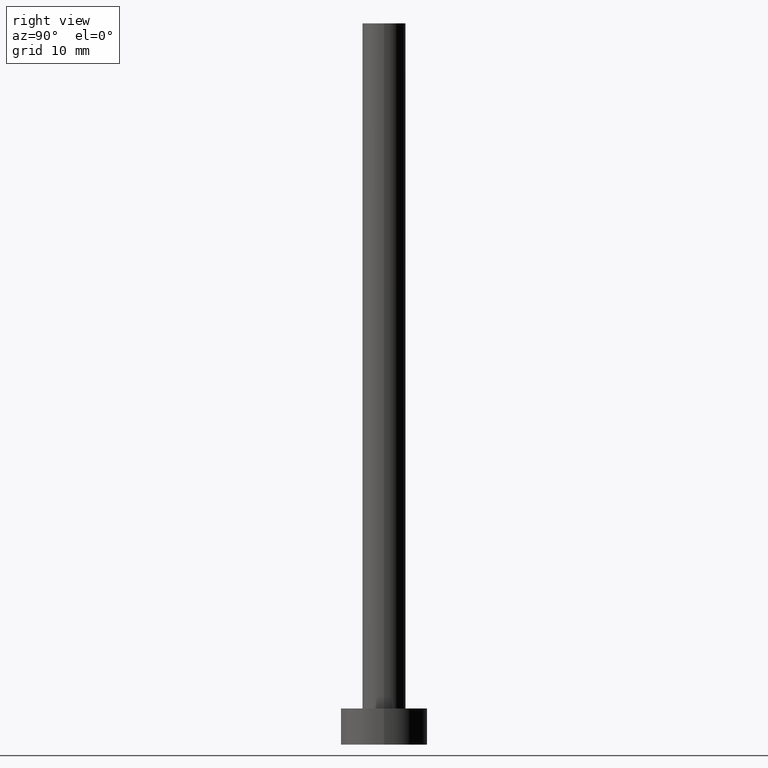
[diagram: clean part render]
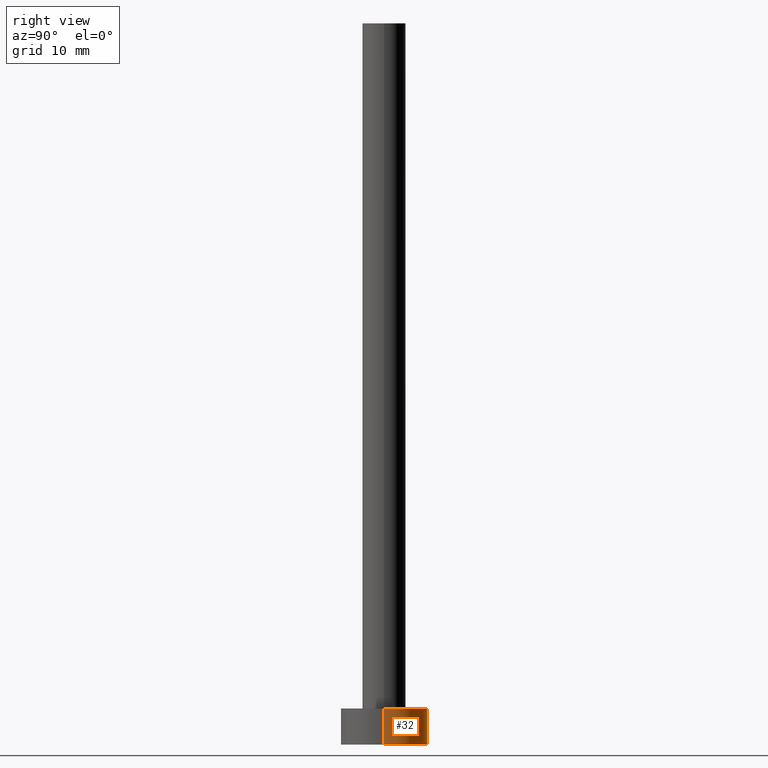
[diagram: same view with one face highlighted and labeled with its STEP entity id]
A machine part, right view. The second image highlights one B-rep face of the part: STEP entity #32.
In plain terms, the highlighted cylindrical surface (partial cylindrical patch) has radius 6 mm, axis along (-0, -0, -1).
Its self-contained STEP definition (entity closure, byte-faithful):
#3 = CIRCLE ( 'NONE', #38, 6.000000000000000888 ) ;
#5 = DIRECTION ( 'NONE',  ( -0.000000000000000000, -0.000000000000000000, -1.000000000000000000 ) ) ;
#23 = DIRECTION ( 'NONE',  ( 1.000000000000000000, 0.000000000000000000, 0.000000000000000000 ) ) ;
#27 = FACE_OUTER_BOUND ( 'NONE', #242, .T. ) ;
#32 = ADVANCED_FACE ( 'NONE', ( #27 ), #63, .T. ) ;
#38 = AXIS2_PLACEMENT_3D ( 'NONE', #227, #139, #85 ) ;
#47 = CARTESIAN_POINT ( 'NONE',  ( 0.000000000000000000, 0.000000000000000000, 0.000000000000000000 ) ) ;
#48 = CARTESIAN_POINT ( 'NONE',  ( 6.000000000000000888, 7.347880794884120722E-16, 5.000000000000000000 ) ) ;
#50 = CIRCLE ( 'NONE', #144, 6.000000000000000888 ) ;
#56 = VERTEX_POINT ( 'NONE', #113 ) ;
#59 = VERTEX_POINT ( 'NONE', #222 ) ;
#60 = EDGE_CURVE ( 'NONE', #56, #198, #50, .T. ) ;
#63 = CYLINDRICAL_SURFACE ( 'NONE', #149, 6.000000000000000888 ) ;
#66 = DIRECTION ( 'NONE',  ( -0.000000000000000000, -0.000000000000000000, -1.000000000000000000 ) ) ;
#73 = VECTOR ( 'NONE', #5, 1000.000000000000000 ) ;
#74 = ORIENTED_EDGE ( 'NONE', *, *, #60, .T. ) ;
#81 = VERTEX_POINT ( 'NONE', #204 ) ;
#85 = DIRECTION ( 'NONE',  ( 1.000000000000000000, 0.000000000000000000, 0.000000000000000000 ) ) ;
#88 = CARTESIAN_POINT ( 'NONE',  ( -6.000000000000000888, 0.000000000000000000, 0.000000000000000000 ) ) ;
#92 = ORIENTED_EDGE ( 'NONE', *, *, #136, .F. ) ;
#104 = EDGE_CURVE ( 'NONE', #59, #56, #132, .T. ) ;
#113 = CARTESIAN_POINT ( 'NONE',  ( 6.000000000000000888, 7.347880794884120722E-16, 0.000000000000000000 ) ) ;
#115 = DIRECTION ( 'NONE',  ( 0.000000000000000000, 0.000000000000000000, 1.000000000000000000 ) ) ;
#117 = LINE ( 'NONE', #211, #193 ) ;
#126 = ORIENTED_EDGE ( 'NONE', *, *, #104, .T. ) ;
#132 = LINE ( 'NONE', #48, #73 ) ;
#136 = EDGE_CURVE ( 'NONE', #59, #81, #3, .T. ) ;
#137 = DIRECTION ( 'NONE',  ( -0.000000000000000000, -0.000000000000000000, -1.000000000000000000 ) ) ;
#139 = DIRECTION ( 'NONE',  ( 0.000000000000000000, 0.000000000000000000, 1.000000000000000000 ) ) ;
#144 = AXIS2_PLACEMENT_3D ( 'NONE', #47, #115, #23 ) ;
#149 = AXIS2_PLACEMENT_3D ( 'NONE', #245, #66, #205 ) ;
#153 = ORIENTED_EDGE ( 'NONE', *, *, #167, .F. ) ;
#167 = EDGE_CURVE ( 'NONE', #81, #198, #117, .T. ) ;
#193 = VECTOR ( 'NONE', #137, 1000.000000000000000 ) ;
#198 = VERTEX_POINT ( 'NONE', #88 ) ;
#204 = CARTESIAN_POINT ( 'NONE',  ( -6.000000000000000888, 0.000000000000000000, 5.000000000000000000 ) ) ;
#205 = DIRECTION ( 'NONE',  ( -1.000000000000000000, 0.000000000000000000, 0.000000000000000000 ) ) ;
#211 = CARTESIAN_POINT ( 'NONE',  ( -6.000000000000000888, 0.000000000000000000, 5.000000000000000000 ) ) ;
#222 = CARTESIAN_POINT ( 'NONE',  ( 6.000000000000000888, 7.347880794884120722E-16, 5.000000000000000000 ) ) ;
#227 = CARTESIAN_POINT ( 'NONE',  ( 0.000000000000000000, 0.000000000000000000, 5.000000000000000000 ) ) ;
#242 = EDGE_LOOP ( 'NONE', ( #92, #126, #74, #153 ) ) ;
#245 = CARTESIAN_POINT ( 'NONE',  ( 0.000000000000000000, 0.000000000000000000, 5.000000000000000000 ) ) ;